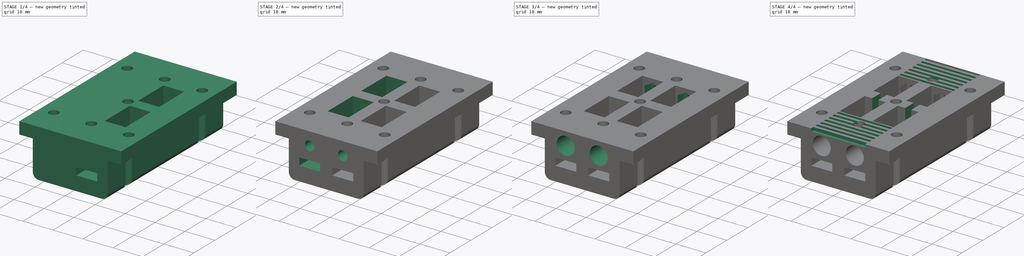
[diagram: build sequence overview — one tinted view per stage of 4, left to right]
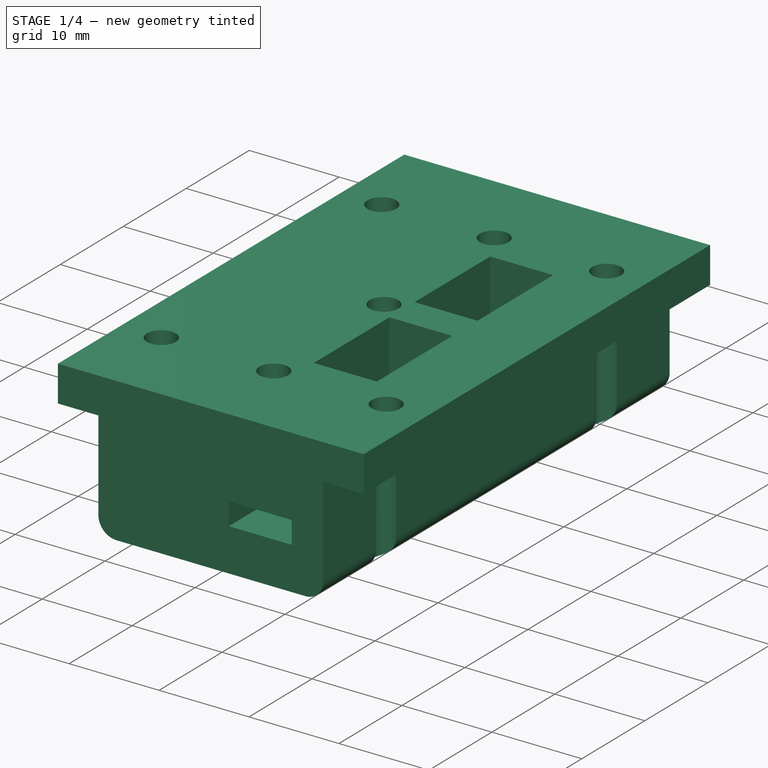
[diagram: stage 1 of 4 — iso view after this stage's code; geometry added in this stage tinted green]
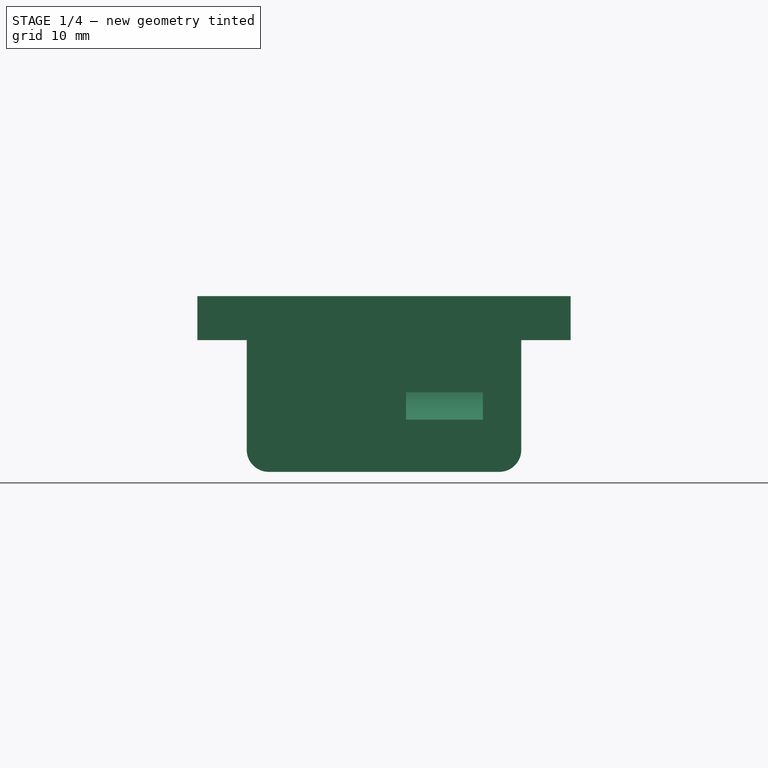
[diagram: stage 1 of 4 — front view after this stage's code; geometry added in this stage tinted green]
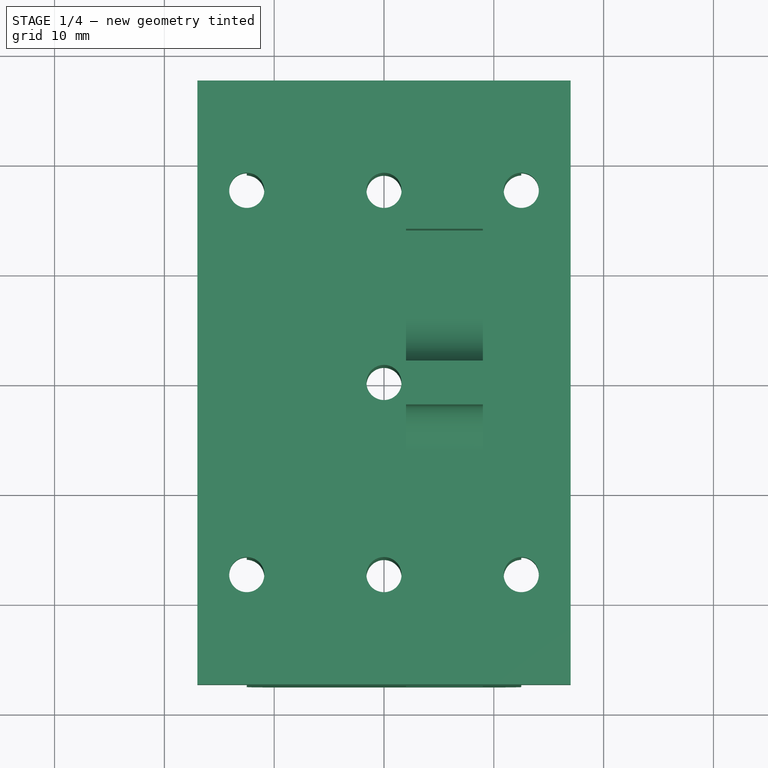
[diagram: stage 1 of 4 — top view after this stage's code; geometry added in this stage tinted green]
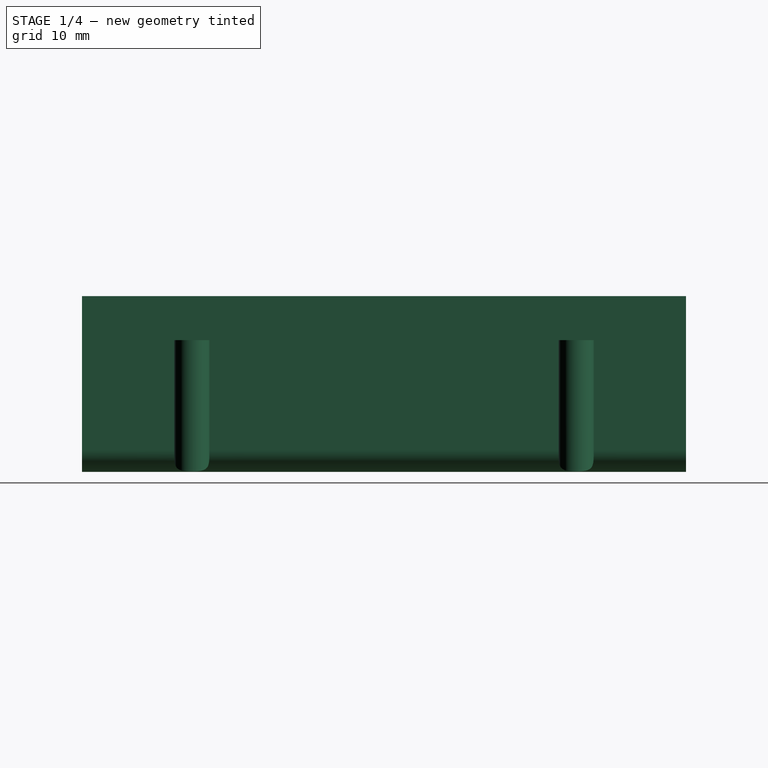
[diagram: stage 1 of 4 — right view after this stage's code; geometry added in this stage tinted green]
FCSTD DOCUMENT  (FreeCAD 0.19R20209 (Git))
Label: X-Axel-Bearing_020b
License: Creative Commons Attribution
LicenseURL: http://creativecommons.org/licenses/by/4.0/
objects: Sketcher::SketchObject×12, PartDesign::Pocket×11, PartDesign::Plane×7, PartDesign::Pad×1, PartDesign::Body×1
note: 44 computed .brp shape members not serialized (recipe doc carries the construction recipe); baked Part::Feature solids carry a one-line shape summary decoded from their .brp

FEATURE [Sketcher::SketchObject] Sketch
  MapMode = 5
  Placement = pos=(0,0,0) rot=(1,0,0;1.5708rad)
  Support = -> [XZ_Plane]
  sketch-geometry (10):
    g0: LineSegment StartX=-17 StartY=10 StartZ=0 EndX=-17 EndY=6 EndZ=0
    g1: LineSegment StartX=-17 StartY=6 StartZ=0 EndX=-12.5 EndY=6 EndZ=0
    g2: LineSegment StartX=-12.5 StartY=6 StartZ=0 EndX=-12.5 EndY=-4 EndZ=0
    g3: LineSegment StartX=-10.5 StartY=-6 StartZ=0 EndX=10.5 EndY=-6 EndZ=0
    g4: LineSegment StartX=12.5 StartY=-4 StartZ=0 EndX=12.5 EndY=6 EndZ=0
    g5: LineSegment StartX=12.5 StartY=6 StartZ=0 EndX=17 EndY=6 EndZ=0
    g6: LineSegment StartX=17 StartY=6 StartZ=0 EndX=17 EndY=10 EndZ=0
    g7: LineSegment StartX=17 StartY=10 StartZ=0 EndX=-17 EndY=10 EndZ=0
    g8: ArcOfCircle CenterX=-10.5 CenterY=-4 CenterZ=0 NormalX=0 NormalY=0 NormalZ=1 AngleXU=0 Radius=2 StartAngle=3.14159 EndAngle=4.71239
    g9: ArcOfCircle CenterX=10.5 CenterY=-4 CenterZ=0 NormalX=0 NormalY=0 NormalZ=1 AngleXU=0 Radius=2 StartAngle=4.71239 EndAngle=6.28319
  constraints (26):
    c: Vertical(g0)
    c: Coincident(g0,g1)
    c: Coincident(g1,g2)
    c: Vertical(g2)
    c: Horizontal(g3)
    c: Vertical(g4)
    c: Coincident(g4,g5)
    c: Horizontal(g5)
    c: Coincident(g5,g6)
    c: Coincident(g6,g7)
    c: Coincident(g7,g0)
    c: Horizontal(g1)
    c: Symmetric(g0,g6,g-2)
    c: Vertical(g6)
    c: DistanceX(g0,g6) = 34
    c: Symmetric(g1,g4,g-2)
    c: Tangent(g2,g8) = -1.5708
    c: Tangent(g3,g8) = -1.5708
    c: Tangent(g3,g9) = -1.5708
    c: Tangent(g4,g9) = -1.5708
    c: Equal(g9,g8)
    c: Radius(g8) = 2
    c: DistanceX(g2,g4) = 25
    c: DistanceY(g3,g5) = 12
    c: DistanceY(g3,g6) = 16
    c: DistanceY(g3,g-1) = 6
FEATURE [PartDesign::Pad] Pad
  Length = 55
  Length2 = 100
  Midplane = true
  Placement = pos=(0,0,0) rot=(1,0,0;1.5708rad)
  Profile = -> Sketch
  Refine = true
  Type = 0
FEATURE [Sketcher::SketchObject] Sketch001
  MapMode = 5
  Support = -> [XY_Plane]
  sketch-geometry (11):
    g0: LineSegment [constr] StartX=-12.5 StartY=17.5 StartZ=0 EndX=12.5 EndY=17.5 EndZ=0
    g1: LineSegment [constr] StartX=12.5 StartY=17.5 StartZ=0 EndX=12.5 EndY=-17.5 EndZ=0
    g2: LineSegment [constr] StartX=12.5 StartY=-17.5 StartZ=0 EndX=-12.5 EndY=-17.5 EndZ=0
    g3: LineSegment [constr] StartX=-12.5 StartY=-17.5 StartZ=0 EndX=-12.5 EndY=17.5 EndZ=0
    g4: Circle CenterX=12.5 CenterY=17.5 CenterZ=0 NormalX=0 NormalY=0 NormalZ=1 AngleXU=0 Radius=1.6
    g5: Circle CenterX=2e-16 CenterY=17.5 CenterZ=0 NormalX=0 NormalY=0 NormalZ=1 AngleXU=0 Radius=1.6
    g6: Circle CenterX=-12.5 CenterY=-17.5 CenterZ=0 NormalX=0 NormalY=0 NormalZ=1 AngleXU=0 Radius=1.6
    g7: Circle CenterX=1e-16 CenterY=-17.5 CenterZ=0 NormalX=0 NormalY=0 NormalZ=1 AngleXU=0 Radius=1.6
    g8: Circle CenterX=12.5 CenterY=-17.5 CenterZ=0 NormalX=0 NormalY=0 NormalZ=1 AngleXU=0 Radius=1.6
    g9: Circle CenterX=-12.5 CenterY=17.5 CenterZ=0 NormalX=0 NormalY=0 NormalZ=1 AngleXU=0 Radius=1.6
    g10: Circle CenterX=0 CenterY=0 CenterZ=0 NormalX=0 NormalY=0 NormalZ=1 AngleXU=0 Radius=1.6
  constraints (25):
    c: Coincident(g0,g1)
    c: Coincident(g1,g2)
    c: Coincident(g2,g3)
    c: Coincident(g3,g0)
    c: Horizontal(g0)
    c: Horizontal(g2)
    c: Vertical(g1)
    c: Vertical(g3)
    c: Symmetric(g1,g0,g-1)
    c: DistanceX(g0,g0) = 25
    c: DistanceY(g1,g1) = 35
    c: Equal(g10,g9)
    c: Equal(g9,g4)
    c: Equal(g4,g5)
    c: Equal(g5,g6)
    c: Equal(g6,g8)
    c: Equal(g8,g7)
    c: Diameter(g9) = 3.2
    c: Coincident(g9,g0)
    c: Coincident(g4,g0)
    c: Coincident(g10,g-1)
    c: Coincident(g6,g2)
    c: Coincident(g8,g1)
    c: Symmetric(g9,g4,g5)
    c: Symmetric(g6,g8,g7)
FEATURE [PartDesign::Pocket] Pocket
  BaseFeature = -> Pad
  Length = 5
  Length2 = 100
  Midplane = true
  Placement = pos=(0,0,0) rot=(1,0,0;1.5708rad)
  Profile = -> Sketch001
  Refine = true
  Type = 1
FEATURE [PartDesign::Plane] DatumPlane
  AttachmentOffset = pos=(0,0,2) rot=(0,0,1;0rad)
  Length = 65.4881
  MapMode = 5
  Placement = pos=(2,-4e-16,4e-16) rot=(0.57735,0.57735,0.57735;2.0944rad)
  ResizeMode = 0
  Support = -> [YZ_Plane]
  Width = 60.4881
FEATURE [Sketcher::SketchObject] Sketch002
  ExternalGeometry = -> [Pocket]
  MapMode = 5
  Placement = pos=(2,-4e-16,4e-16) rot=(0.57735,0.57735,0.57735;2.0944rad)
  Support = -> [DatumPlane]
  sketch-geometry (14):
    g0: ArcOfCircle CenterX=-6 CenterY=2.75 CenterZ=0 NormalX=0 NormalY=0 NormalZ=1 AngleXU=0 Radius=4 StartAngle=4.71239 EndAngle=6.28319
    g1: ArcOfCircle CenterX=6 CenterY=2.75 CenterZ=0 NormalX=0 NormalY=0 NormalZ=1 AngleXU=0 Radius=4 StartAngle=3.14159 EndAngle=4.71239
    g2: LineSegment StartX=-6 StartY=-1.25 StartZ=0 EndX=-27.5 EndY=-1.25 EndZ=0
    g3: LineSegment StartX=-27.5 StartY=-1.25 StartZ=0 EndX=-27.5 EndY=1.25 EndZ=0
    g4: LineSegment StartX=-27.5 StartY=1.25 StartZ=0 EndX=-14 EndY=1.25 EndZ=0
    g5: LineSegment StartX=-14 StartY=1.25 StartZ=0 EndX=-14 EndY=10 EndZ=0
    g6: LineSegment StartX=-14 StartY=10 StartZ=0 EndX=-2 EndY=10 EndZ=0
    g7: LineSegment StartX=-2 StartY=10 StartZ=0 EndX=-2 EndY=2.75 EndZ=0
    g8: LineSegment StartX=2 StartY=2.75 StartZ=0 EndX=2 EndY=10 EndZ=0
    g9: LineSegment StartX=2 StartY=10 StartZ=0 EndX=14 EndY=10 EndZ=0
    g10: LineSegment StartX=14 StartY=10 StartZ=0 EndX=14 EndY=1.25 EndZ=0
    g11: LineSegment StartX=14 StartY=1.25 StartZ=0 EndX=27.5 EndY=1.25 EndZ=0
    g12: LineSegment StartX=27.5 StartY=1.25 StartZ=0 EndX=27.5 EndY=-1.25 EndZ=0
    g13: LineSegment StartX=27.5 StartY=-1.25 StartZ=0 EndX=6 EndY=-1.25 EndZ=0
  constraints (42):
    c: Equal(g1,g0)
    c: Radius(g0) = 4
    c: Angle(g0) = 1.5708
    c: Angle(g1) = 1.5708
    c: Horizontal(g0,g0)
    c: Horizontal(g1,g1)
    c: Symmetric(g0,g1,g-2)
    c: DistanceX(g0,g1) = 4
    c: Horizontal(g2)
    c: Coincident(g2,g3)
    c: Coincident(g3,g4)
    c: Horizontal(g4)
    c: Coincident(g4,g5)
    c: Vertical(g5)
    c: Coincident(g5,g6)
    c: Horizontal(g6)
    c: Coincident(g6,g7)
    c: Vertical(g7)
    c: Coincident(g8,g9)
    c: Horizontal(g9)
    c: Coincident(g9,g10)
    c: Vertical(g10)
    c: Coincident(g10,g11)
    c: Horizontal(g11)
    c: Coincident(g11,g12)
    c: Vertical(g12)
    c: Coincident(g12,g13)
    c: Horizontal(g13)
    c: Vertical(g8)
    c: Coincident(g8,g1)
    c: Coincident(g7,g0)
    c: Coincident(g2,g0)
    c: Coincident(g13,g1)
    c: Equal(g3,g12)
    c: DistanceY(g3,g3) = 2.5
    c: Equal(g6,g9)
    c: DistanceX(g6,g6) = 12
    c: Symmetric(g3,g2,g-1)
    c: Equal(g4,g11)
    c: PointOnObject(g6,g-3)
    c: Horizontal(g8,g6)
    c: Vertical(g3,g-3)
FEATURE [PartDesign::Pocket] Pocket001
  BaseFeature = -> Pocket
  Length = 7
  Length2 = 100
  Placement = pos=(0,0,0) rot=(1,0,0;1.5708rad)
  Profile = -> Sketch002
  Refine = true
  Reversed = true
  Type = 0
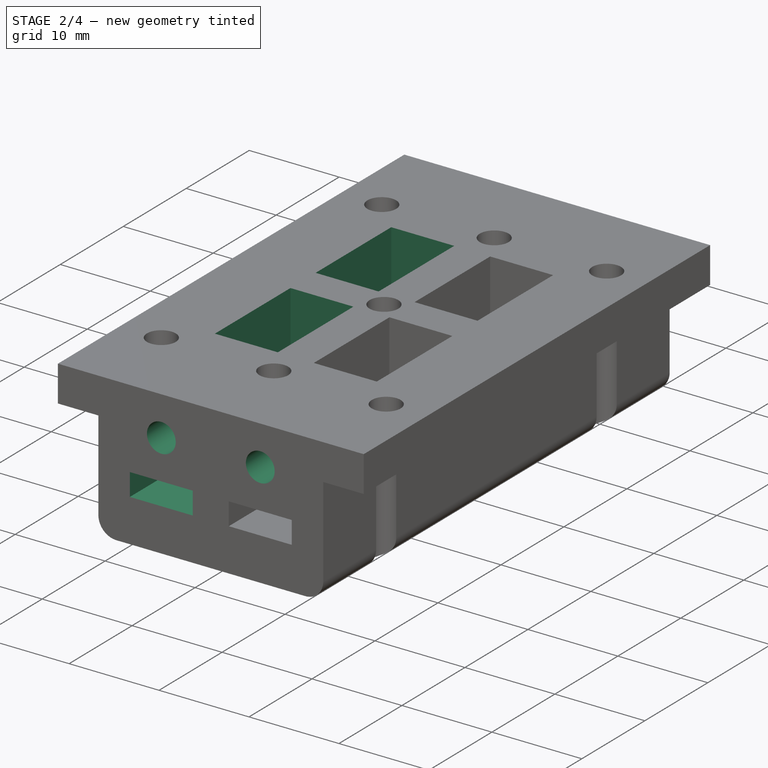
[diagram: stage 2 of 4 — iso view after this stage's code; geometry added in this stage tinted green]
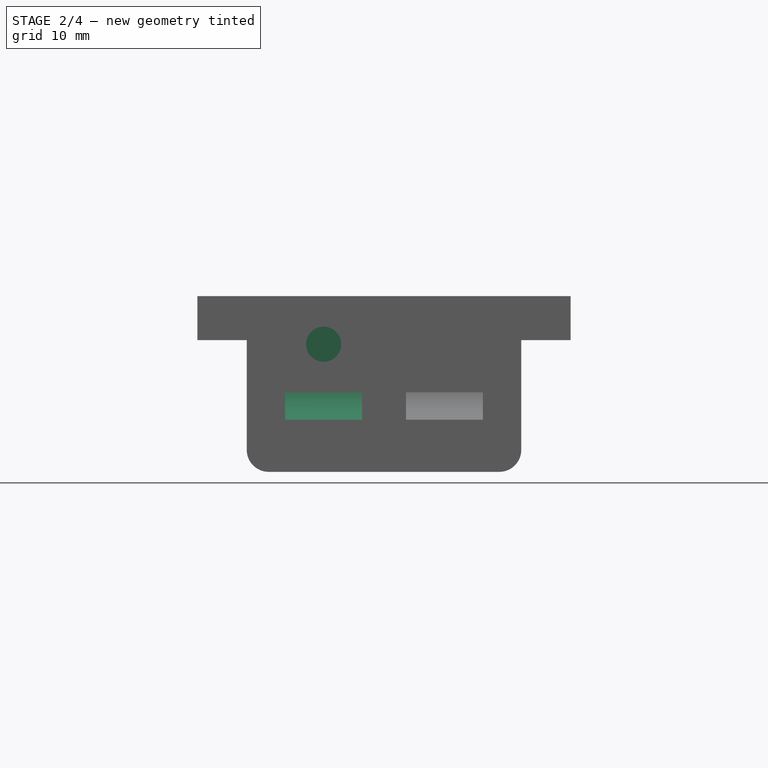
[diagram: stage 2 of 4 — front view after this stage's code; geometry added in this stage tinted green]
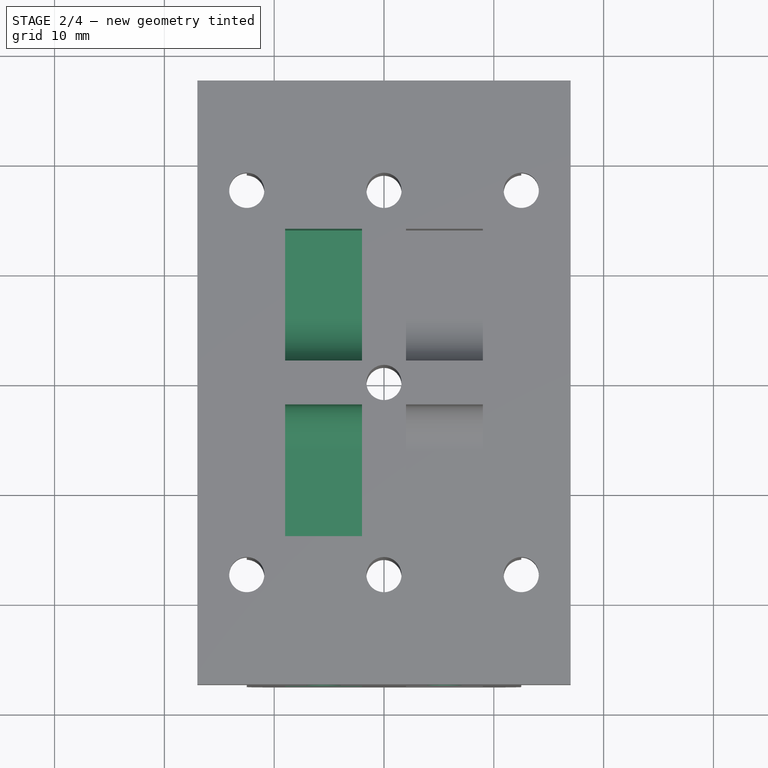
[diagram: stage 2 of 4 — top view after this stage's code; geometry added in this stage tinted green]
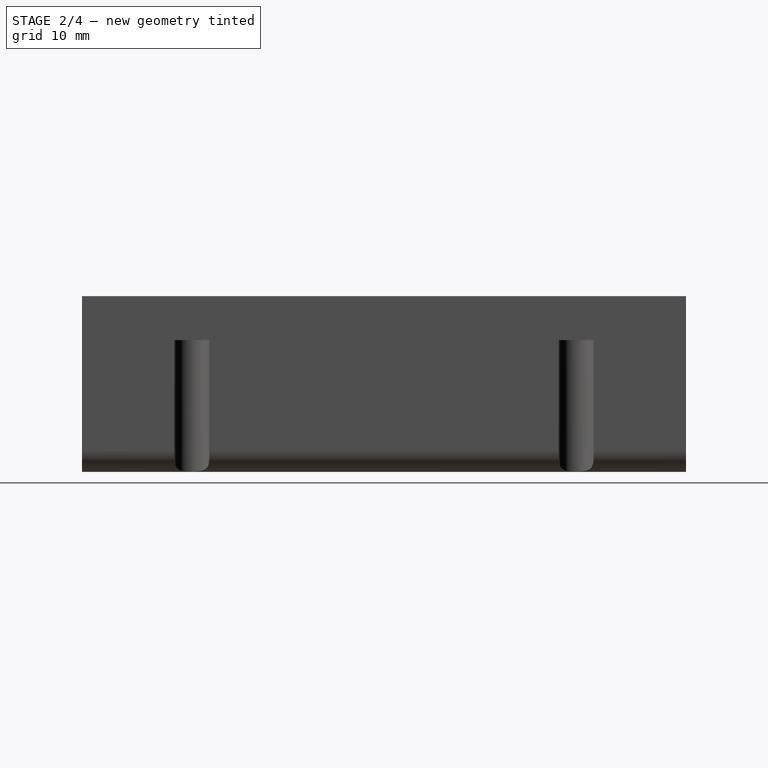
[diagram: stage 2 of 4 — right view after this stage's code; geometry added in this stage tinted green]
FEATURE [PartDesign::Plane] DatumPlane001
  AttachmentOffset = pos=(0,0,-2) rot=(0,0,1;0rad)
  Length = 65.4881
  MapMode = 5
  Placement = pos=(-2,4e-16,-4e-16) rot=(0.57735,0.57735,0.57735;2.0944rad)
  ResizeMode = 0
  Support = -> [YZ_Plane]
  Width = 60.4881
FEATURE [Sketcher::SketchObject] Sketch003
  ExternalGeometry = -> [Pocket001]
  MapMode = 5
  Placement = pos=(-2,4e-16,-4e-16) rot=(0.57735,0.57735,0.57735;2.0944rad)
  Support = -> [DatumPlane001]
  sketch-geometry (14):
    g0: ArcOfCircle CenterX=-6 CenterY=2.75 CenterZ=0 NormalX=0 NormalY=0 NormalZ=1 AngleXU=0 Radius=4 StartAngle=4.71239 EndAngle=6.28319
    g1: ArcOfCircle CenterX=6 CenterY=2.75 CenterZ=0 NormalX=0 NormalY=0 NormalZ=1 AngleXU=0 Radius=4 StartAngle=3.14159 EndAngle=4.71239
    g2: LineSegment StartX=-2 StartY=2.75 StartZ=0 EndX=-2 EndY=10 EndZ=0
    g3: LineSegment StartX=-2 StartY=10 StartZ=0 EndX=-14 EndY=10 EndZ=0
    g4: LineSegment StartX=-14 StartY=10 StartZ=0 EndX=-14 EndY=1.25 EndZ=0
    g5: LineSegment StartX=-14 StartY=1.25 StartZ=0 EndX=-27.5 EndY=1.25 EndZ=0
    g6: LineSegment StartX=-27.5 StartY=1.25 StartZ=0 EndX=-27.5 EndY=-1.25 EndZ=0
    g7: LineSegment StartX=-27.5 StartY=-1.25 StartZ=0 EndX=-6 EndY=-1.25 EndZ=0
    g8: LineSegment StartX=2 StartY=2.75 StartZ=0 EndX=2 EndY=10 EndZ=0
    g9: LineSegment StartX=2 StartY=10 StartZ=0 EndX=14 EndY=10 EndZ=0
    g10: LineSegment StartX=14 StartY=10 StartZ=0 EndX=14 EndY=1.25 EndZ=0
    g11: LineSegment StartX=14 StartY=1.25 StartZ=0 EndX=27.5 EndY=1.25 EndZ=0
    g12: LineSegment StartX=27.5 StartY=1.25 StartZ=0 EndX=27.5 EndY=-1.25 EndZ=0
    g13: LineSegment StartX=27.5 StartY=-1.25 StartZ=0 EndX=6 EndY=-1.25 EndZ=0
  constraints (38):
    c: Coincident(g0,g-3)
    c: Coincident(g0,g-3)
    c: Angle(g0) = 1.5708
    c: Angle(g1) = 1.5708
    c: Coincident(g1,g-4)
    c: Coincident(g1,g-4)
    c: Vertical(g2)
    c: Coincident(g2,g3)
    c: Horizontal(g3)
    c: Coincident(g3,g4)
    c: Coincident(g4,g5)
    c: Horizontal(g5)
    c: Coincident(g5,g6)
    c: Vertical(g6)
    c: Coincident(g6,g7)
    c: Horizontal(g7)
    c: Coincident(g4,g-6)
    c: Coincident(g2,g0)
    c: Coincident(g7,g0)
    c: Vertical(g5,g-5)
    c: Coincident(g3,g-6)
    c: Vertical(g8)
    c: Coincident(g8,g9)
    c: Coincident(g9,g10)
    c: Vertical(g10)
    c: Coincident(g10,g11)
    c: Horizontal(g11)
    c: Coincident(g11,g12)
    c: Vertical(g12)
    c: Coincident(g12,g13)
    c: Horizontal(g13)
    c: Horizontal(g9)
    c: Equal(g3,g9)
    c: Equal(g5,g11)
    c: Coincident(g8,g1)
    c: Coincident(g13,g1)
    c: Horizontal(g10,g4)
    c: Horizontal(g8,g2)
FEATURE [PartDesign::Pocket] Pocket002
  BaseFeature = -> Pocket001
  Length = 7
  Length2 = 100
  Placement = pos=(0,0,0) rot=(1,0,0;1.5708rad)
  Profile = -> Sketch003
  Refine = true
  Type = 0
FEATURE [PartDesign::Plane] DatumPlane002
  AttachmentOffset = pos=(0,0,14) rot=(0,0,1;0rad)
  Length = 60
  MapMode = 5
  Placement = pos=(0,-14,3.1e-15) rot=(1,0,0;1.5708rad)
  ResizeMode = 0
  Support = -> [XZ_Plane]
  Width = 60
FEATURE [Sketcher::SketchObject] Sketch004
  ExternalGeometry = -> [Pocket002]
  MapMode = 5
  Placement = pos=(0,-14,3.1e-15) rot=(1,0,0;1.5708rad)
  Support = -> [DatumPlane002]
  sketch-geometry (4):
    g0: GeomPoint X=-5.5 Y=5.625 Z=0
    g1: GeomPoint X=5.5 Y=5.625 Z=0
    g2: Circle CenterX=-5.5 CenterY=5.625 CenterZ=0 NormalX=0 NormalY=0 NormalZ=1 AngleXU=0 Radius=1.6
    g3: Circle CenterX=5.5 CenterY=5.625 CenterZ=0 NormalX=0 NormalY=0 NormalZ=1 AngleXU=0 Radius=1.6
  constraints (6):
    c: Symmetric(g-3,g-4,g0)
    c: Symmetric(g-5,g-6,g1)
    c: Equal(g3,g2)
    c: Diameter(g2) = 3.2
    c: Coincident(g3,g1)
    c: Coincident(g0,g2)
FEATURE [PartDesign::Pocket] Pocket003
  BaseFeature = -> Pocket002
  Length = 5
  Length2 = 100
  Placement = pos=(0,0,0) rot=(1,0,0;1.5708rad)
  Profile = -> Sketch004
  Refine = true
  Reversed = true
  Type = 1
FEATURE [Sketcher::SketchObject] Sketch005
  ExternalGeometry = -> [Pocket003]
  MapMode = 5
  Placement = pos=(0,-14,3.1e-15) rot=(1,0,0;1.5708rad)
  Support = -> [DatumPlane002]
  sketch-geometry (14):
    g0: LineSegment StartX=-2.75 StartY=4.03729 StartZ=0 EndX=-2.75 EndY=7.21271 EndZ=0
    g1: LineSegment StartX=-2.75 StartY=7.21271 StartZ=0 EndX=-5.5 EndY=8.80043 EndZ=0
    g2: LineSegment StartX=-5.5 StartY=8.80043 StartZ=0 EndX=-8.25 EndY=7.21271 EndZ=0
    g3: LineSegment StartX=-8.25 StartY=7.21271 StartZ=0 EndX=-8.25 EndY=4.03729 EndZ=0
    g4: LineSegment StartX=-8.25 StartY=4.03729 StartZ=0 EndX=-5.5 EndY=2.44957 EndZ=0
    g5: LineSegment StartX=-5.5 StartY=2.44957 StartZ=0 EndX=-2.75 EndY=4.03729 EndZ=0
    g6: Circle [constr] CenterX=-5.5 CenterY=5.625 CenterZ=0 NormalX=0 NormalY=0 NormalZ=1 AngleXU=0 Radius=3.17543
    g7: LineSegment StartX=8.25 StartY=4.03729 StartZ=0 EndX=8.25 EndY=7.21271 EndZ=0
    g8: LineSegment StartX=8.25 StartY=7.21271 StartZ=0 EndX=5.5 EndY=8.80043 EndZ=0
    g9: LineSegment StartX=5.5 StartY=8.80043 StartZ=0 EndX=2.75 EndY=7.21271 EndZ=0
    g10: LineSegment StartX=2.75 StartY=7.21271 StartZ=0 EndX=2.75 EndY=4.03729 EndZ=0
    g11: LineSegment StartX=2.75 StartY=4.03729 StartZ=0 EndX=5.5 EndY=2.44957 EndZ=0
    g12: LineSegment StartX=5.5 StartY=2.44957 StartZ=0 EndX=8.25 EndY=4.03729 EndZ=0
    g13: Circle [constr] CenterX=5.5 CenterY=5.625 CenterZ=0 NormalX=0 NormalY=0 NormalZ=1 AngleXU=0 Radius=3.17543
  constraints (32):
    c: Coincident(g0,g1)
    c: Coincident(g1,g2)
    c: Coincident(g2,g3)
    c: Coincident(g3,g4)
    c: Coincident(g4,g5)
    c: Coincident(g5,g0)
    c: Equal(g0, g1-g5) x5
    c: PointOnObject(g0,g6)
    c: PointOnObject(g1,g6)
    c: PointOnObject(g2,g6)
    c: PointOnObject(g3,g6)
    c: PointOnObject(g4,g6)
    c: PointOnObject(g5,g6)
    c: Coincident(g7,g8)
    c: Coincident(g8,g9)
    c: Coincident(g9,g10)
    c: Coincident(g10,g11)
    c: Coincident(g11,g12)
    c: Coincident(g12,g7)
    c: Equal(g7, g8-g12) x5
    c: PointOnObject(g7,g13)
    c: PointOnObject(g8,g13)
    c: PointOnObject(g9,g13)
    c: PointOnObject(g10,g13)
    c: PointOnObject(g11,g13)
    c: PointOnObject(g12,g13)
    c: Equal(g13,g6)
    c: Vertical(g6,g1)
    c: Vertical(g13,g8)
    c: Distance(g0,g2) = 5.5
    c: Coincident(g13,g-4)
    c: Coincident(g6,g-3)
FEATURE [PartDesign::Pocket] Pocket004
  BaseFeature = -> Pocket003
  Length = 3
  Length2 = 100
  Placement = pos=(0,0,0) rot=(1,0,0;1.5708rad)
  Profile = -> Sketch005
  Refine = true
  Reversed = true
  Type = 0
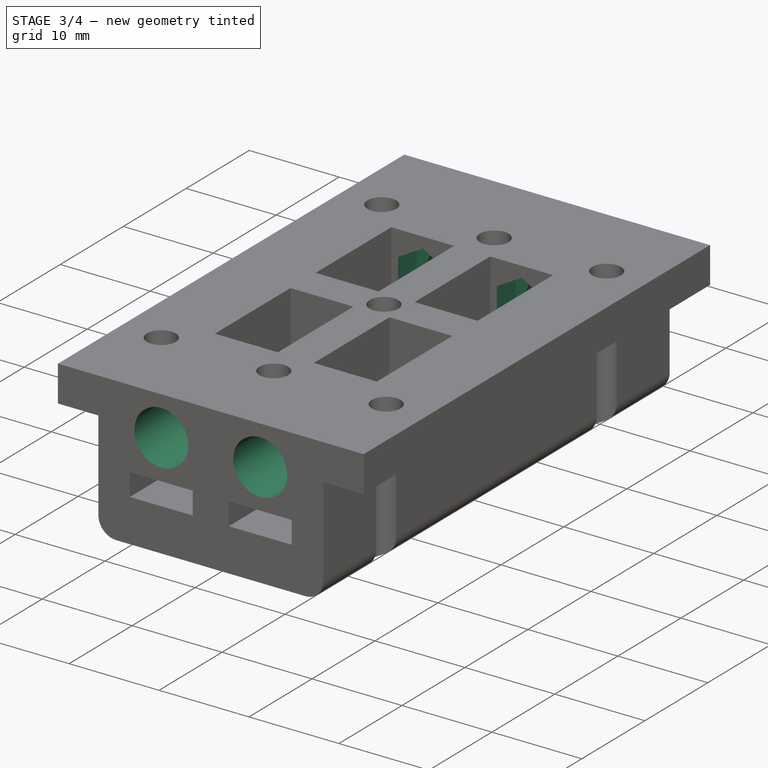
[diagram: stage 3 of 4 — iso view after this stage's code; geometry added in this stage tinted green]
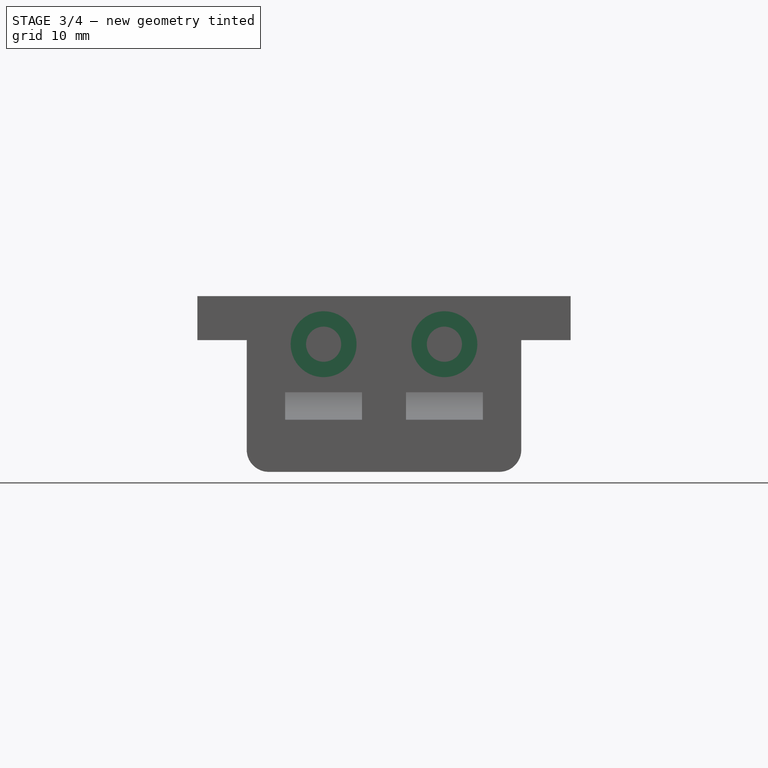
[diagram: stage 3 of 4 — front view after this stage's code; geometry added in this stage tinted green]
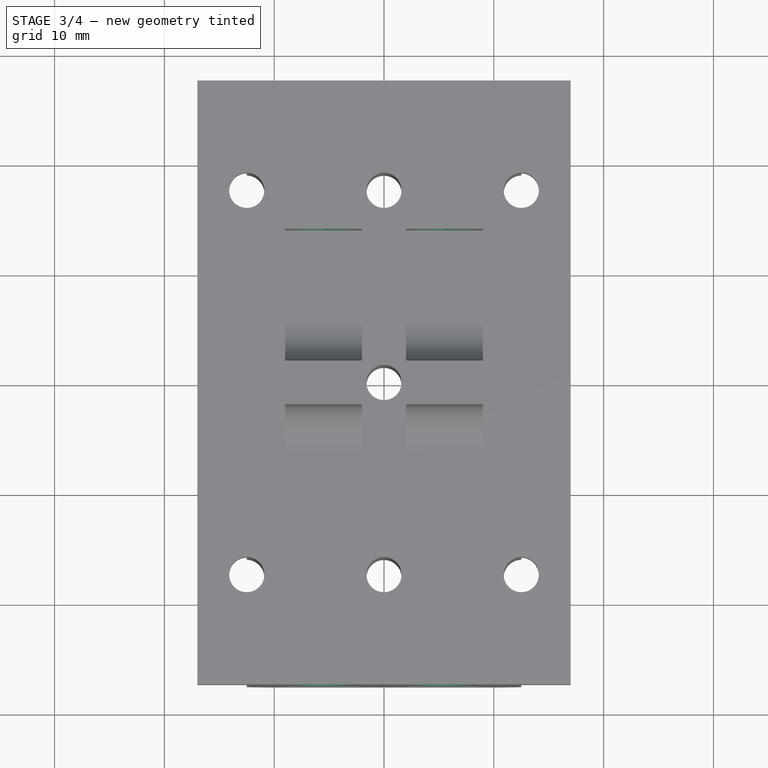
[diagram: stage 3 of 4 — top view after this stage's code; geometry added in this stage tinted green]
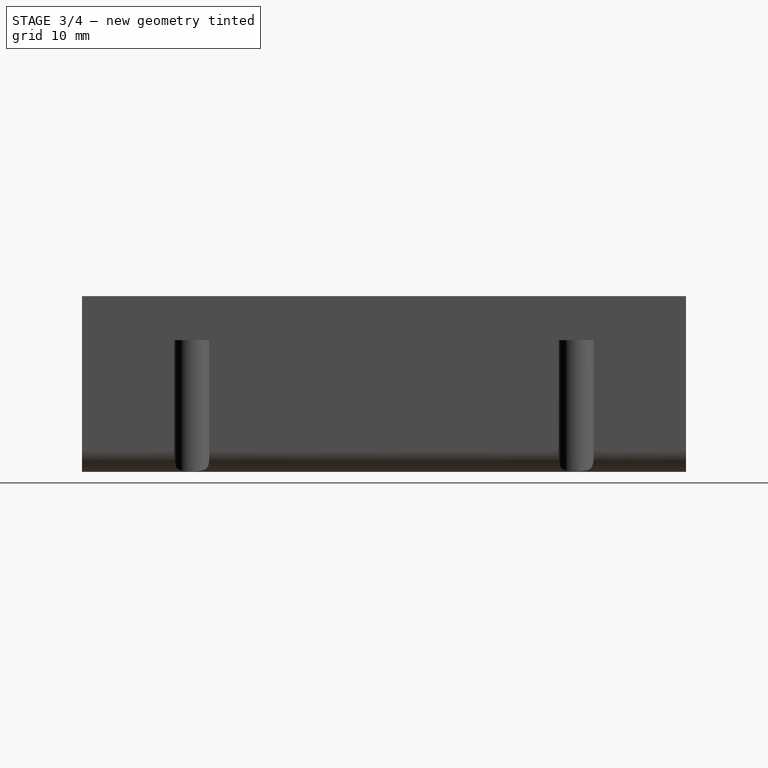
[diagram: stage 3 of 4 — right view after this stage's code; geometry added in this stage tinted green]
FEATURE [PartDesign::Plane] DatumPlane003
  AttachmentOffset = pos=(0,0,-14) rot=(0,0,1;0rad)
  Length = 60
  MapMode = 5
  Placement = pos=(0,14,-3.1e-15) rot=(1,0,0;1.5708rad)
  ResizeMode = 0
  Support = -> [XZ_Plane]
  Width = 60
FEATURE [Sketcher::SketchObject] Sketch006
  ExternalGeometry = -> [Pocket004]
  MapMode = 5
  Placement = pos=(0,14,-3.1e-15) rot=(1,0,0;1.5708rad)
  Support = -> [DatumPlane003]
  sketch-geometry (2):
    g0: Circle CenterX=-5.5 CenterY=5.625 CenterZ=0 NormalX=0 NormalY=0 NormalZ=1 AngleXU=0 Radius=1.6
    g1: Circle CenterX=5.5 CenterY=5.625 CenterZ=0 NormalX=0 NormalY=0 NormalZ=1 AngleXU=0 Radius=1.6
  constraints (4):
    c: Equal(g1,g0)
    c: Diameter(g0) = 3.2
    c: Coincident(g1,g-4)
    c: Coincident(g0,g-3)
FEATURE [PartDesign::Pocket] Pocket005
  BaseFeature = -> Pocket004
  Length = 5
  Length2 = 100
  Placement = pos=(0,0,0) rot=(1,0,0;1.5708rad)
  Profile = -> Sketch006
  Refine = true
  Type = 1
FEATURE [Sketcher::SketchObject] Sketch007
  ExternalGeometry = -> [Pocket005]
  MapMode = 5
  Placement = pos=(0,14,-3.1e-15) rot=(1,0,0;1.5708rad)
  Support = -> [DatumPlane003]
  sketch-geometry (14):
    g0: LineSegment StartX=-2.75 StartY=4.03729 StartZ=0 EndX=-2.75 EndY=7.21271 EndZ=0
    g1: LineSegment StartX=-2.75 StartY=7.21271 StartZ=0 EndX=-5.5 EndY=8.80043 EndZ=0
    g2: LineSegment StartX=-5.5 StartY=8.80043 StartZ=0 EndX=-8.25 EndY=7.21271 EndZ=0
    g3: LineSegment StartX=-8.25 StartY=7.21271 StartZ=0 EndX=-8.25 EndY=4.03729 EndZ=0
    g4: LineSegment StartX=-8.25 StartY=4.03729 StartZ=0 EndX=-5.5 EndY=2.44957 EndZ=0
    g5: LineSegment StartX=-5.5 StartY=2.44957 StartZ=0 EndX=-2.75 EndY=4.03729 EndZ=0
    g6: Circle [constr] CenterX=-5.5 CenterY=5.625 CenterZ=0 NormalX=0 NormalY=0 NormalZ=1 AngleXU=0 Radius=3.17543
    g7: LineSegment StartX=8.25 StartY=4.03729 StartZ=0 EndX=8.25 EndY=7.21271 EndZ=0
    g8: LineSegment StartX=8.25 StartY=7.21271 StartZ=0 EndX=5.5 EndY=8.80043 EndZ=0
    g9: LineSegment StartX=5.5 StartY=8.80043 StartZ=0 EndX=2.75 EndY=7.21271 EndZ=0
    g10: LineSegment StartX=2.75 StartY=7.21271 StartZ=0 EndX=2.75 EndY=4.03729 EndZ=0
    g11: LineSegment StartX=2.75 StartY=4.03729 StartZ=0 EndX=5.5 EndY=2.44957 EndZ=0
    g12: LineSegment StartX=5.5 StartY=2.44957 StartZ=0 EndX=8.25 EndY=4.03729 EndZ=0
    g13: Circle [constr] CenterX=5.5 CenterY=5.625 CenterZ=0 NormalX=0 NormalY=0 NormalZ=1 AngleXU=0 Radius=3.17543
  constraints (32):
    c: Coincident(g0,g1)
    c: Coincident(g1,g2)
    c: Coincident(g2,g3)
    c: Coincident(g3,g4)
    c: Coincident(g4,g5)
    c: Coincident(g5,g0)
    c: Equal(g0, g1-g5) x5
    c: PointOnObject(g0,g6)
    c: PointOnObject(g1,g6)
    c: PointOnObject(g2,g6)
    c: PointOnObject(g3,g6)
    c: PointOnObject(g4,g6)
    c: PointOnObject(g5,g6)
    c: Coincident(g7,g8)
    c: Coincident(g8,g9)
    c: Coincident(g9,g10)
    c: Coincident(g10,g11)
    c: Coincident(g11,g12)
    c: Coincident(g12,g7)
    c: Equal(g7, g8-g12) x5
    c: PointOnObject(g7,g13)
    c: PointOnObject(g8,g13)
    c: PointOnObject(g9,g13)
    c: PointOnObject(g10,g13)
    c: PointOnObject(g11,g13)
    c: PointOnObject(g12,g13)
    c: Equal(g13,g6)
    c: Vertical(g6,g1)
    c: Vertical(g13,g8)
    c: Distance(g2,g0) = 5.5
    c: Coincident(g13,g-4)
    c: Coincident(g6,g-3)
FEATURE [PartDesign::Pocket] Pocket006
  BaseFeature = -> Pocket005
  Length = 3
  Length2 = 100
  Placement = pos=(0,0,0) rot=(1,0,0;1.5708rad)
  Profile = -> Sketch007
  Refine = true
  Type = 0
FEATURE [PartDesign::Plane] DatumPlane004
  AttachmentOffset = pos=(0,0,27.5) rot=(0,0,1;0rad)
  Length = 60
  MapMode = 5
  Placement = pos=(0,-27.5,6.1e-15) rot=(1,0,0;1.5708rad)
  ResizeMode = 0
  Support = -> [XZ_Plane]
  Width = 60
  expr: .AttachmentOffset.Base.z = 55 / 2
FEATURE [Sketcher::SketchObject] Sketch008
  ExternalGeometry = -> [Pocket006]
  MapMode = 5
  Placement = pos=(0,-27.5,6.1e-15) rot=(1,0,0;1.5708rad)
  Support = -> [DatumPlane004]
  sketch-geometry (2):
    g0: Circle CenterX=-5.5 CenterY=5.625 CenterZ=0 NormalX=0 NormalY=0 NormalZ=1 AngleXU=0 Radius=3
    g1: Circle CenterX=5.5 CenterY=5.625 CenterZ=0 NormalX=0 NormalY=0 NormalZ=1 AngleXU=0 Radius=3
  constraints (4):
    c: Equal(g1,g0)
    c: Diameter(g0) = 6
    c: Coincident(g0,g-3)
    c: Coincident(g1,g-4)
FEATURE [PartDesign::Pocket] Pocket007
  BaseFeature = -> Pocket006
  Length = 8
  Length2 = 100
  Placement = pos=(0,0,0) rot=(1,0,0;1.5708rad)
  Profile = -> Sketch008
  Refine = true
  Type = 0
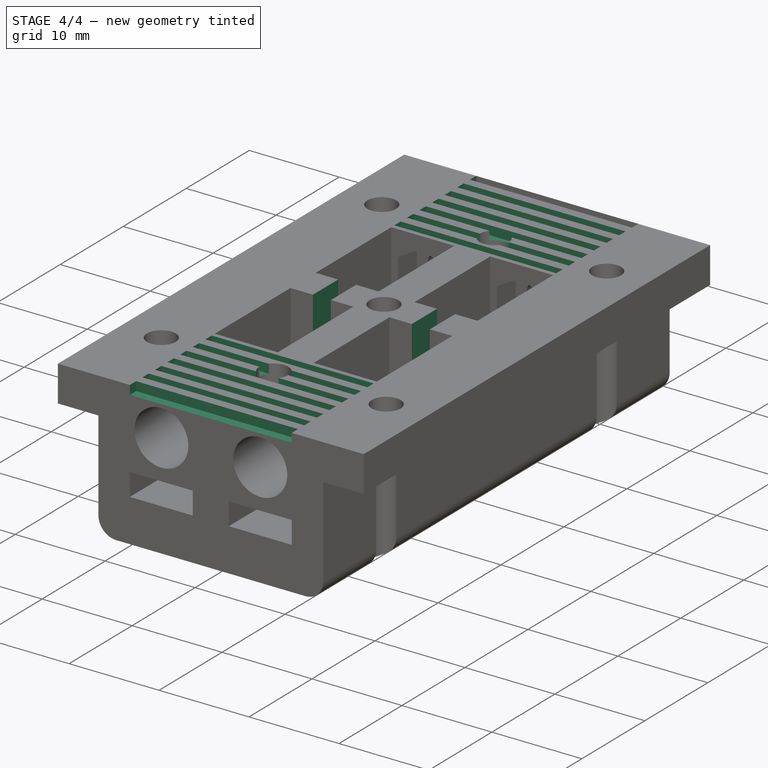
[diagram: stage 4 of 4 — iso view after this stage's code; geometry added in this stage tinted green]
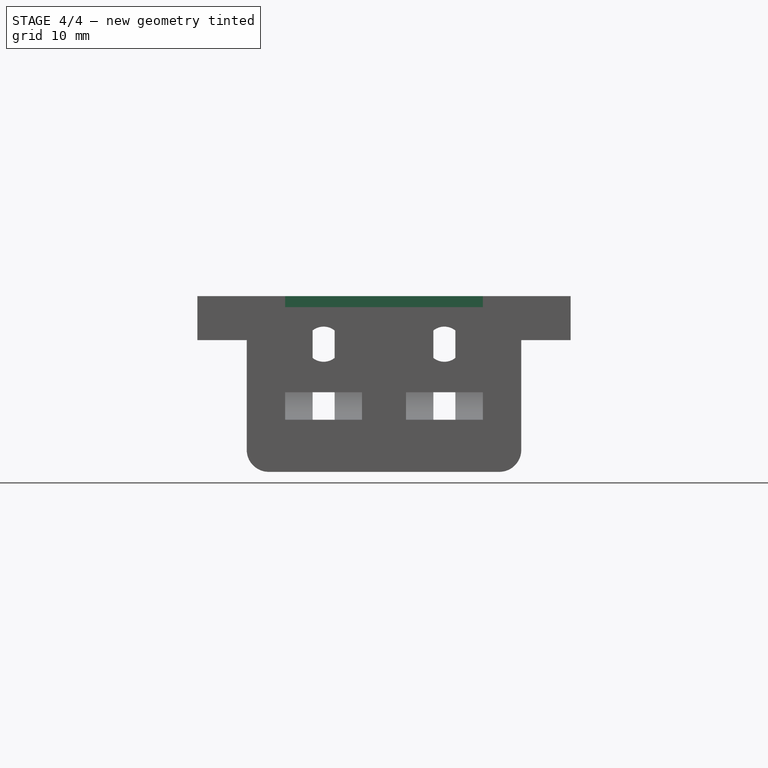
[diagram: stage 4 of 4 — front view after this stage's code; geometry added in this stage tinted green]
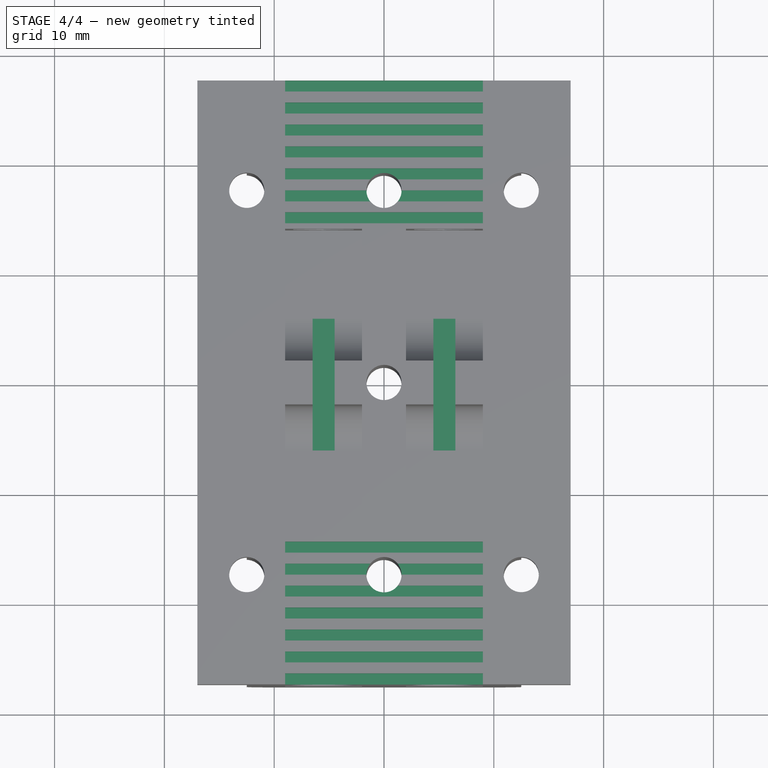
[diagram: stage 4 of 4 — top view after this stage's code; geometry added in this stage tinted green]
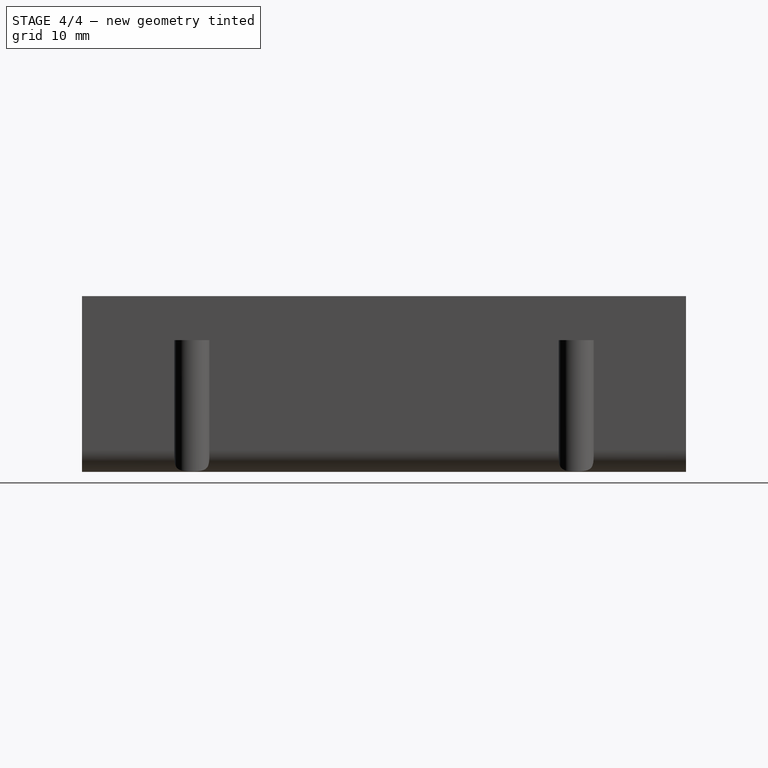
[diagram: stage 4 of 4 — right view after this stage's code; geometry added in this stage tinted green]
FEATURE [PartDesign::Plane] DatumPlane005
  AttachmentOffset = pos=(0,0,-27.5) rot=(0,0,1;0rad)
  Length = 60
  MapMode = 5
  Placement = pos=(0,27.5,-6.1e-15) rot=(1,0,0;1.5708rad)
  ResizeMode = 0
  Support = -> [XZ_Plane]
  Width = 60
  expr: .AttachmentOffset.Base.z = -55 / 2
FEATURE [Sketcher::SketchObject] Sketch009
  ExternalGeometry = -> [Pocket007]
  MapMode = 5
  Placement = pos=(0,27.5,-6.1e-15) rot=(1,0,0;1.5708rad)
  Support = -> [DatumPlane005]
  sketch-geometry (2):
    g0: Circle CenterX=-5.5 CenterY=5.625 CenterZ=0 NormalX=0 NormalY=0 NormalZ=1 AngleXU=0 Radius=3
    g1: Circle CenterX=5.5 CenterY=5.625 CenterZ=0 NormalX=0 NormalY=0 NormalZ=1 AngleXU=0 Radius=3
  constraints (4):
    c: Equal(g1,g0)
    c: Diameter(g0) = 6
    c: Coincident(g0,g-3)
    c: Coincident(g1,g-4)
FEATURE [PartDesign::Pocket] Pocket008
  BaseFeature = -> Pocket007
  Length = 8
  Length2 = 100
  Placement = pos=(0,0,0) rot=(1,0,0;1.5708rad)
  Profile = -> Sketch009
  Refine = true
  Reversed = true
  Type = 0
FEATURE [Sketcher::SketchObject] Sketch010
  ExternalGeometry = -> [Pocket008]
  MapMode = 5
  Placement = pos=(0,0,0) rot=(1,0,0;1.5708rad)
  Support = -> [XZ_Plane]
  sketch-geometry (8):
    g0: LineSegment StartX=-6.5 StartY=12.5 StartZ=0 EndX=-4.5 EndY=12.5 EndZ=0
    g1: LineSegment StartX=-4.5 StartY=12.5 StartZ=0 EndX=-4.5 EndY=-1.25 EndZ=0
    g2: LineSegment StartX=-4.5 StartY=-1.25 StartZ=0 EndX=-6.5 EndY=-1.25 EndZ=0
    g3: LineSegment StartX=-6.5 StartY=-1.25 StartZ=0 EndX=-6.5 EndY=12.5 EndZ=0
    g4: LineSegment StartX=4.5 StartY=12.5 StartZ=0 EndX=6.5 EndY=12.5 EndZ=0
    g5: LineSegment StartX=6.5 StartY=12.5 StartZ=0 EndX=6.5 EndY=-1.25 EndZ=0
    g6: LineSegment StartX=6.5 StartY=-1.25 StartZ=0 EndX=4.5 EndY=-1.25 EndZ=0
    g7: LineSegment StartX=4.5 StartY=-1.25 StartZ=0 EndX=4.5 EndY=12.5 EndZ=0
  constraints (22):
    c: Coincident(g0,g1)
    c: Coincident(g1,g2)
    c: Coincident(g2,g3)
    c: Coincident(g3,g0)
    c: Horizontal(g0)
    c: Horizontal(g2)
    c: Vertical(g1)
    c: Vertical(g3)
    c: Coincident(g4,g5)
    c: Coincident(g5,g6)
    c: Coincident(g6,g7)
    c: Coincident(g7,g4)
    c: Horizontal(g4)
    c: Horizontal(g6)
    c: Vertical(g5)
    c: Vertical(g7)
    c: Symmetric(g5,g4,g-4)
    c: Symmetric(g1,g0,g-3)
    c: Equal(g0,g4)
    c: Equal(g3,g7)
    c: Horizontal(g1,g-5)
    c: DistanceX(g0,g0) = 2
FEATURE [PartDesign::Pocket] Pocket009
  BaseFeature = -> Pocket008
  Length = 12
  Length2 = 100
  Midplane = true
  Placement = pos=(0,0,0) rot=(1,0,0;1.5708rad)
  Profile = -> Sketch010
  Refine = true
  Type = 0
FEATURE [PartDesign::Plane] DatumPlane006
  AttachmentOffset = pos=(0,0,10) rot=(0,0,1;0rad)
  Length = 60.4881
  MapMode = 5
  Placement = pos=(0,0,10) rot=(0,0,1;0rad)
  ResizeMode = 0
  Support = -> [XY_Plane]
  Width = 65.4881
FEATURE [Sketcher::SketchObject] Sketch011
  ExternalGeometry = -> [Pocket009]
  MapMode = 5
  Placement = pos=(0,0,10) rot=(0,0,1;0rad)
  Support = -> [DatumPlane006]
  sketch-geometry (84):
    g0: LineSegment StartX=-9 StartY=15.5 StartZ=0 EndX=9 EndY=15.5 EndZ=0
    g1: LineSegment StartX=9 StartY=15.5 StartZ=0 EndX=9 EndY=14.5 EndZ=0
    g2: LineSegment StartX=9 StartY=14.5 StartZ=0 EndX=-9 EndY=14.5 EndZ=0
    g3: LineSegment StartX=-9 StartY=14.5 StartZ=0 EndX=-9 EndY=15.5 EndZ=0
    g4: LineSegment StartX=-9 StartY=17.5 StartZ=0 EndX=9 EndY=17.5 EndZ=0
    g5: LineSegment StartX=9 StartY=17.5 StartZ=0 EndX=9 EndY=16.5 EndZ=0
    g6: LineSegment StartX=9 StartY=16.5 StartZ=0 EndX=-9 EndY=16.5 EndZ=0
    g7: LineSegment StartX=-9 StartY=16.5 StartZ=0 EndX=-9 EndY=17.5 EndZ=0
    g8: LineSegment StartX=-9 StartY=19.5 StartZ=0 EndX=9 EndY=19.5 EndZ=0
    g9: LineSegment StartX=9 StartY=19.5 StartZ=0 EndX=9 EndY=18.5 EndZ=0
    g10: LineSegment StartX=9 StartY=18.5 StartZ=0 EndX=-9 EndY=18.5 EndZ=0
    g11: LineSegment StartX=-9 StartY=18.5 StartZ=0 EndX=-9 EndY=19.5 EndZ=0
    g12: LineSegment StartX=-9 StartY=21.5 StartZ=0 EndX=9 EndY=21.5 EndZ=0
    g13: LineSegment StartX=9 StartY=21.5 StartZ=0 EndX=9 EndY=20.5 EndZ=0
    g14: LineSegment StartX=9 StartY=20.5 StartZ=0 EndX=-9 EndY=20.5 EndZ=0
    g15: LineSegment StartX=-9 StartY=20.5 StartZ=0 EndX=-9 EndY=21.5 EndZ=0
    g16: LineSegment StartX=-9 StartY=23.5 StartZ=0 EndX=9 EndY=23.5 EndZ=0
    g17: LineSegment StartX=9 StartY=23.5 StartZ=0 EndX=9 EndY=22.5 EndZ=0
    g18: LineSegment StartX=9 StartY=22.5 StartZ=0 EndX=-9 EndY=22.5 EndZ=0
    g19: LineSegment StartX=-9 StartY=22.5 StartZ=0 EndX=-9 EndY=23.5 EndZ=0
    g20: GeomPoint X=0 Y=23 Z=0
    g21: GeomPoint X=0 Y=21 Z=0
    g22: GeomPoint X=0 Y=19 Z=0
    g23: GeomPoint X=0 Y=17 Z=0
    g24: GeomPoint X=0 Y=15 Z=0
    g25: LineSegment [constr] StartX=-9 StartY=22.5 StartZ=0 EndX=-9 EndY=21.5 EndZ=0
    g26: LineSegment [constr] StartX=-9 StartY=20.5 StartZ=0 EndX=-9 EndY=19.5 EndZ=0
    g27: LineSegment [constr] StartX=-9 StartY=18.5 StartZ=0 EndX=-9 EndY=17.5 EndZ=0
    g28: LineSegment [constr] StartX=-9 StartY=16.5 StartZ=0 EndX=-9 EndY=15.5 EndZ=0
    g29: LineSegment StartX=-9 StartY=27.5 StartZ=0 EndX=8.99991 EndY=27.5 EndZ=0
    g30: LineSegment StartX=8.99991 StartY=27.5 StartZ=0 EndX=8.99991 EndY=26.5 EndZ=0
    g31: LineSegment StartX=8.99991 StartY=26.5 StartZ=0 EndX=-9 EndY=26.5 EndZ=0
    g32: LineSegment StartX=-9 StartY=26.5 StartZ=0 EndX=-9 EndY=27.5 EndZ=0
    g33: LineSegment StartX=-9 StartY=25.5 StartZ=0 EndX=8.99991 EndY=25.5 EndZ=0
    g34: LineSegment StartX=8.99991 StartY=25.5 StartZ=0 EndX=8.99991 EndY=24.5 EndZ=0
    g35: LineSegment StartX=8.99991 StartY=24.5 StartZ=0 EndX=-9 EndY=24.5 EndZ=0
    g36: LineSegment StartX=-9 StartY=24.5 StartZ=0 EndX=-9 EndY=25.5 EndZ=0
    g37: GeomPoint X=-4.33795e-05 Y=27 Z=0
    g38: GeomPoint X=-4.33795e-05 Y=25 Z=0
    g39: LineSegment [constr] StartX=-9 StartY=28.5 StartZ=0 EndX=-9 EndY=27.5 EndZ=0
    g40: LineSegment [constr] StartX=-9 StartY=26.5 StartZ=0 EndX=-9 EndY=25.5 EndZ=0
    g41: LineSegment [constr] StartX=-9 StartY=24.5 StartZ=0 EndX=-9 EndY=23.5 EndZ=0
    g42: LineSegment StartX=-9 StartY=-26.5 StartZ=0 EndX=9 EndY=-26.5 EndZ=0
    g43: LineSegment StartX=9 StartY=-26.5 StartZ=0 EndX=9 EndY=-27.5 EndZ=0
    g44: LineSegment StartX=9 StartY=-27.5 StartZ=0 EndX=-9 EndY=-27.5 EndZ=0
    g45: LineSegment StartX=-9 StartY=-27.5 StartZ=0 EndX=-9 EndY=-26.5 EndZ=0
    g46: LineSegment StartX=-9 StartY=-24.5 StartZ=0 EndX=9 EndY=-24.5 EndZ=0
    g47: LineSegment StartX=9 StartY=-24.5 StartZ=0 EndX=9 EndY=-25.5 EndZ=0
    g48: LineSegment StartX=9 StartY=-25.5 StartZ=0 EndX=-9 EndY=-25.5 EndZ=0
    g49: LineSegment StartX=-9 StartY=-25.5 StartZ=0 EndX=-9 EndY=-24.5 EndZ=0
    g50: LineSegment StartX=-9 StartY=-22.5 StartZ=0 EndX=9 EndY=-22.5 EndZ=0
    g51: LineSegment StartX=9 StartY=-22.5 StartZ=0 EndX=9 EndY=-23.5 EndZ=0
    g52: LineSegment StartX=9 StartY=-23.5 StartZ=0 EndX=-9 EndY=-23.5 EndZ=0
    g53: LineSegment StartX=-9 StartY=-23.5 StartZ=0 EndX=-9 EndY=-22.5 EndZ=0
    g54: LineSegment StartX=-9 StartY=-20.5 StartZ=0 EndX=9 EndY=-20.5 EndZ=0
    g55: LineSegment StartX=9 StartY=-20.5 StartZ=0 EndX=9 EndY=-21.5 EndZ=0
    g56: LineSegment StartX=9 StartY=-21.5 StartZ=0 EndX=-9 EndY=-21.5 EndZ=0
    g57: LineSegment StartX=-9 StartY=-21.5 StartZ=0 EndX=-9 EndY=-20.5 EndZ=0
    g58: LineSegment StartX=-9 StartY=-18.5 StartZ=0 EndX=9 EndY=-18.5 EndZ=0
    g59: LineSegment StartX=9 StartY=-18.5 StartZ=0 EndX=9 EndY=-19.5 EndZ=0
    g60: LineSegment StartX=9 StartY=-19.5 StartZ=0 EndX=-9 EndY=-19.5 EndZ=0
    g61: LineSegment StartX=-9 StartY=-19.5 StartZ=0 EndX=-9 EndY=-18.5 EndZ=0
    g62: GeomPoint X=5.1e-15 Y=-19 Z=0
    g63: GeomPoint X=5.1e-15 Y=-21 Z=0
    g64: GeomPoint X=5.1e-15 Y=-23 Z=0
    g65: GeomPoint X=5.1e-15 Y=-25 Z=0
    g66: GeomPoint X=5.1e-15 Y=-27 Z=0
    g67: LineSegment [constr] StartX=-9 StartY=-19.5 StartZ=0 EndX=-9 EndY=-20.5 EndZ=0
    g68: LineSegment [constr] StartX=-9 StartY=-21.5 StartZ=0 EndX=-9 EndY=-22.5 EndZ=0
    g69: LineSegment [constr] StartX=-9 StartY=-23.5 StartZ=0 EndX=-9 EndY=-24.5 EndZ=0
    g70: LineSegment [constr] StartX=-9 StartY=-25.5 StartZ=0 EndX=-9 EndY=-26.5 EndZ=0
    g71: LineSegment StartX=-9 StartY=-14.5 StartZ=0 EndX=9 EndY=-14.5 EndZ=0
    g72: LineSegment StartX=9 StartY=-14.5 StartZ=0 EndX=9 EndY=-15.5 EndZ=0
    g73: LineSegment StartX=9 StartY=-15.5 StartZ=0 EndX=-9 EndY=-15.5 EndZ=0
    g74: LineSegment StartX=-9 StartY=-15.5 StartZ=0 EndX=-9 EndY=-14.5 EndZ=0
    g75: LineSegment StartX=-9 StartY=-16.5 StartZ=0 EndX=9 EndY=-16.5 EndZ=0
    g76: LineSegment StartX=9 StartY=-16.5 StartZ=0 EndX=9 EndY=-17.5 EndZ=0
    g77: LineSegment StartX=9 StartY=-17.5 StartZ=0 EndX=-9 EndY=-17.5 EndZ=0
    g78: LineSegment StartX=-9 StartY=-17.5 StartZ=0 EndX=-9 EndY=-16.5 EndZ=0
    g79: GeomPoint X=6.6e-15 Y=-15 Z=0
    g80: GeomPoint X=6.6e-15 Y=-17 Z=0
    g81: LineSegment [constr] StartX=-9 StartY=-14 StartZ=0 EndX=-9 EndY=-14.5 EndZ=0
    g82: LineSegment [constr] StartX=-9 StartY=-15.5 StartZ=0 EndX=-9 EndY=-16.5 EndZ=0
    g83: LineSegment [constr] StartX=-9 StartY=-17.5 StartZ=0 EndX=-9 EndY=-18.5 EndZ=0
  constraints (210):
    c: Coincident(g0,g1)
    c: Coincident(g1,g2)
    c: Coincident(g2,g3)
    c: Coincident(g3,g0)
    c: Horizontal(g0)
    c: Horizontal(g2)
    c: Vertical(g1)
    c: Vertical(g3)
    c: Coincident(g4,g5)
    c: Coincident(g5,g6)
    c: Coincident(g6,g7)
    c: Coincident(g7,g4)
    c: Horizontal(g4)
    c: Horizontal(g6)
    c: Vertical(g5)
    c: Vertical(g7)
    c: Coincident(g8,g9)
    c: Coincident(g9,g10)
    c: Coincident(g10,g11)
    c: Coincident(g11,g8)
    c: Horizontal(g8)
    c: Horizontal(g10)
    c: Vertical(g9)
    c: Vertical(g11)
    c: Coincident(g12,g13)
    c: Coincident(g13,g14)
    c: Coincident(g14,g15)
    c: Coincident(g15,g12)
    c: Horizontal(g12)
    c: Horizontal(g14)
    c: Vertical(g13)
    c: Vertical(g15)
    c: Coincident(g16,g17)
    c: Coincident(g17,g18)
    c: Coincident(g18,g19)
    c: Coincident(g19,g16)
    c: Horizontal(g16)
    c: Horizontal(g18)
    c: Vertical(g17)
    c: Vertical(g19)
    c: Symmetric(g16,g17,g20)
    c: DistanceY(g19,g19) = 1
    c: Symmetric(g12,g13,g21)
    c: Equal(g19,g15)
    c: Vertical(g21,g20)
    c: Equal(g16,g12)
    c: DistanceX(g16,g16) = 18
    c: PointOnObject(g20,g-2)
    c: Symmetric(g8,g9,g22)
    c: Symmetric(g4,g5,g23)
    c: Symmetric(g0,g1,g24)
    c: Equal(g3,g7)
    c: Equal(g7,g11)
    c: Equal(g11,g19)
    c: Equal(g0,g4)
    c: Equal(g4,g8)
    c: Equal(g8,g16)
    c: Vertical(g24,g23)
    c: Vertical(g23,g22)
    c: Vertical(g22,g20)
    c: Equal(g28,g27)
    c: Equal(g27,g26)
    c: Equal(g26,g25)
    c: Equal(g19,g25)
    c: Coincident(g25,g18)
    c: Coincident(g12,g25)
    c: Coincident(g26,g14)
    c: Coincident(g27,g10)
    c: Coincident(g8,g26)
    c: Coincident(g4,g27)
    c: Coincident(g28,g6)
    c: Coincident(g0,g28)
    c: DistanceY(g-3,g2) = 0.5
    c: Coincident(g29,g30)
    c: Coincident(g30,g31)
    c: Coincident(g31,g32)
    c: Coincident(g32,g29)
    c: Horizontal(g29)
    c: Horizontal(g31)
    c: Vertical(g30)
    c: Vertical(g32)
    c: Coincident(g33,g34)
    c: Coincident(g34,g35)
    c: Coincident(g35,g36)
    c: Coincident(g36,g33)
    c: Horizontal(g33)
    c: Horizontal(g35)
    c: Vertical(g34)
    c: Vertical(g36)
    c: Symmetric(g29,g30,g37)
    c: Symmetric(g33,g34,g38)
    c: Equal(g33,g29)
    c: Vertical(g38,g37)
    c: Equal(g19,g36)
    c: Vertical(g41)
    c: Equal(g32,g41)
    c: Equal(g41,g40)
    c: Equal(g40,g39)
    c: Coincident(g39,g29)
    c: Coincident(g40,g31)
    c: Coincident(g33,g40)
    c: Coincident(g41,g16)
    c: Coincident(g41,g35)
    c: Coincident(g42,g43)
    c: Coincident(g43,g44)
    c: Coincident(g44,g45)
    c: Coincident(g45,g42)
    c: Horizontal(g42)
    c: Horizontal(g44)
    c: Vertical(g43)
    c: Vertical(g45)
    c: Coincident(g46,g47)
    c: Coincident(g47,g48)
    c: Coincident(g48,g49)
    c: Coincident(g49,g46)
    c: Horizontal(g46)
    c: Horizontal(g48)
    c: Vertical(g47)
    c: Vertical(g49)
    c: Coincident(g50,g51)
    c: Coincident(g51,g52)
    c: Coincident(g52,g53)
    c: Coincident(g53,g50)
    c: Horizontal(g50)
    c: Horizontal(g52)
    c: Vertical(g51)
    c: Vertical(g53)
    c: Coincident(g54,g55)
    c: Coincident(g55,g56)
    c: Coincident(g56,g57)
    c: Coincident(g57,g54)
    c: Horizontal(g54)
    c: Horizontal(g56)
    c: Vertical(g55)
    c: Vertical(g57)
    c: Coincident(g58,g59)
    c: Coincident(g59,g60)
    c: Coincident(g60,g61)
    c: Coincident(g61,g58)
    c: Horizontal(g58)
    c: Horizontal(g60)
    c: Vertical(g59)
    c: Vertical(g61)
    c: Symmetric(g58,g59,g62)
    c: Equal(g19,g61) = 1
    c: Symmetric(g54,g55,g63)
    c: Equal(g61,g57)
    c: Vertical(g63,g62)
    c: Equal(g58,g54)
    c: Equal(g16,g58) = 18
    c: Symmetric(g50,g51,g64)
    c: Symmetric(g46,g47,g65)
    c: Symmetric(g42,g43,g66)
    c: Equal(g45,g49)
    c: Equal(g49,g53)
    c: Equal(g53,g61)
    c: Equal(g42,g46)
    c: Equal(g46,g50)
    c: Equal(g50,g58)
    c: Vertical(g66,g65)
    c: Vertical(g65,g64)
    c: Vertical(g64,g62)
    c: Equal(g70,g69)
    c: Equal(g69,g68)
    c: Equal(g68,g67)
    c: Equal(g61,g67)
    c: Coincident(g67,g60)
    c: Coincident(g54,g67)
    c: Coincident(g68,g56)
    c: Coincident(g69,g52)
    c: Coincident(g50,g68)
    c: Coincident(g46,g69)
    c: Coincident(g70,g48)
    c: Coincident(g42,g70)
    c: Coincident(g71,g72)
    c: Coincident(g72,g73)
    c: Coincident(g73,g74)
    c: Coincident(g74,g71)
    c: Horizontal(g71)
    c: Horizontal(g73)
    c: Vertical(g72)
    c: Vertical(g74)
    c: Coincident(g75,g76)
    c: Coincident(g76,g77)
    c: Coincident(g77,g78)
    c: Coincident(g78,g75)
    c: Horizontal(g75)
    c: Horizontal(g77)
    c: Vertical(g76)
    c: Vertical(g78)
    c: Symmetric(g71,g72,g79)
    c: Symmetric(g75,g76,g80)
    c: Equal(g75,g71)
    c: Vertical(g80,g79)
    c: Equal(g61,g78)
    c: Vertical(g83)
    c: Equal(g74,g83)
    c: Equal(g83,g82)
    c: Coincident(g81,g71)
    c: Coincident(g82,g73)
    c: Coincident(g75,g82)
    c: Coincident(g83,g58)
    c: Coincident(g83,g77)
    c: Equal(g78,g82)
    c: Equal(g82,g74)
    c: Equal(g58,g75)
    c: Equal(g75,g71)
    c: Vertical(g81)
    c: Coincident(g81,g-4)
    c: DistanceY(g81,g81) = 0.5
FEATURE [PartDesign::Pocket] Pocket010
  BaseFeature = -> Pocket009
  Length = 1
  Length2 = 100
  Placement = pos=(0,0,0) rot=(1,0,0;1.5708rad)
  Profile = -> Sketch011
  Refine = true
  Type = 0
FEATURE [PartDesign::Body] Body
  Group = -> [Sketch,Pad,Sketch001,Pocket,DatumPlane,Sketch002,Pocket001,DatumPlane001,Sketch003,Pocket002,DatumPlane002,Sketch004,Pocket003,Sketch005,Pocket004,DatumPlane003,Sketch006,Pocket005,Sketch007,Pocket006,DatumPlane004,Sketch008,Pocket007,DatumPlane005,Sketch009,Pocket008,Sketch010,Pocket009,DatumPlane006,Sketch011,Pocket010]
  Origin = -> Origin
  Tip = -> Pocket010
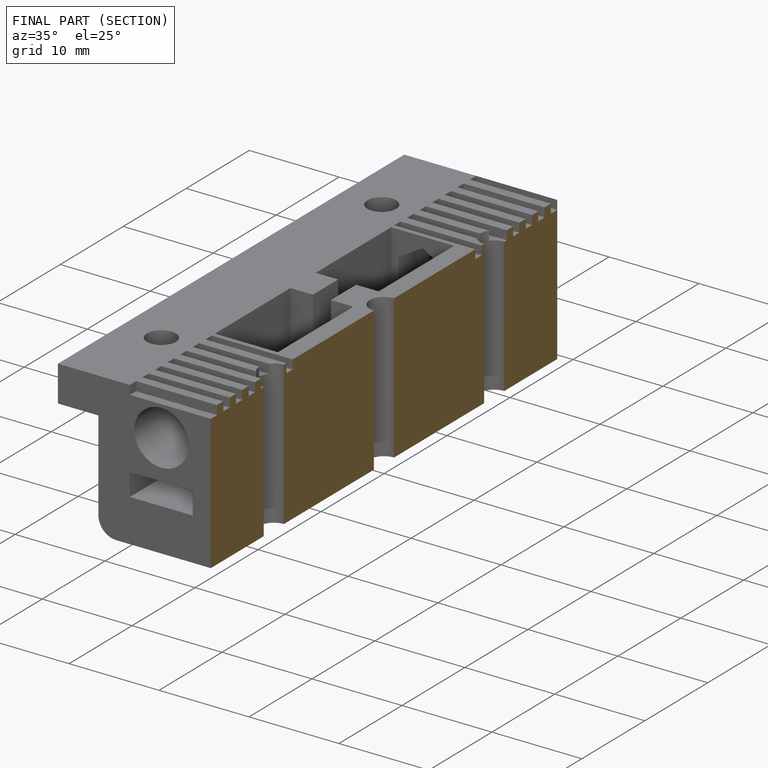
[diagram: finished part — half-section view (interior)]
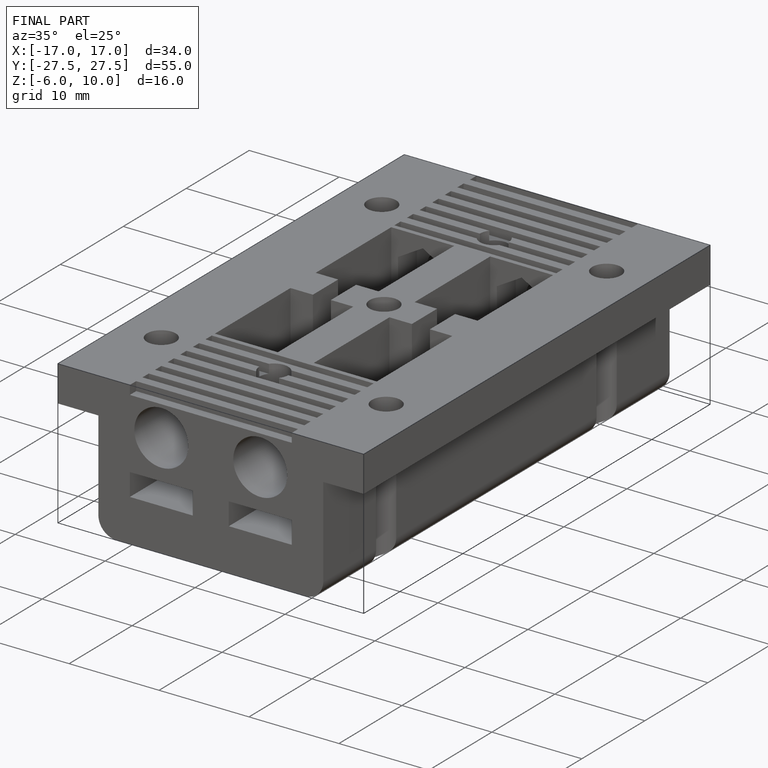
[diagram: finished part — iso view with bounding-box wireframe]
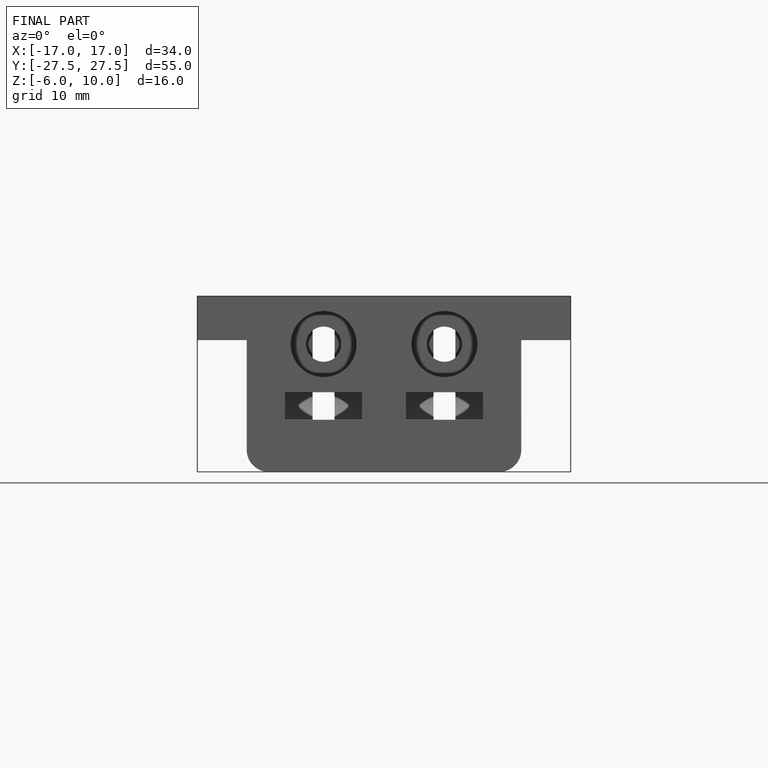
[diagram: finished part — front view with bounding-box wireframe]
